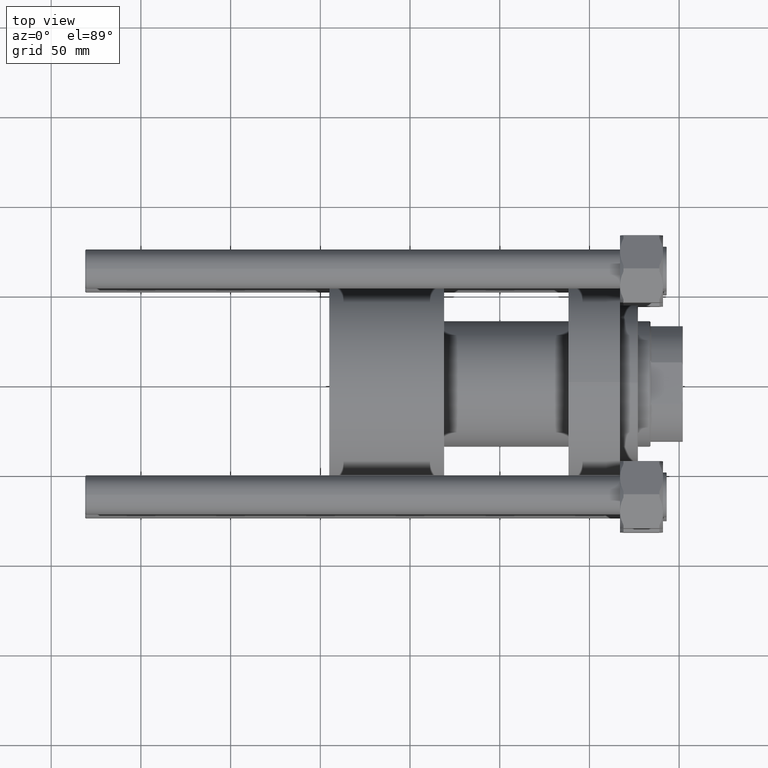
[diagram: clean part render]
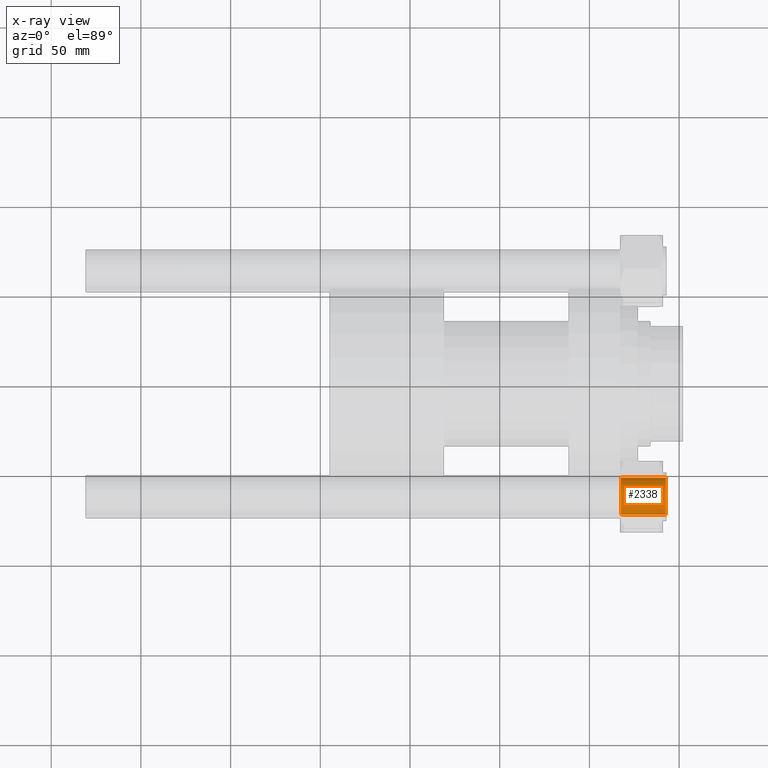
[diagram: x-ray — body ghosted, one internal face saturated and labeled with its STEP entity id]
A machine part, top view, then the same camera in x-ray: the body is ghosted and one INTERNAL B-rep face — a face not visible from any outside direction — is saturated and labeled: STEP entity #2338.
In plain terms, the highlighted cylindrical surface (edge-blend (fillet) strip) has radius 11 mm, axis along (1, 0, -0).
Its self-contained STEP definition (entity closure, byte-faithful):
#1276 = DIRECTION ( 'NONE',  ( -0.000000000000000000, -0.000000000000000000, -1.000000000000000000 ) ) ;
#1510 = DIRECTION ( 'NONE',  ( 0.000000000000000000, 0.000000000000000000, 1.000000000000000000 ) ) ;
#1661 = VERTEX_POINT ( 'NONE', #18629 ) ;
#2338 = ADVANCED_FACE ( 'NONE', ( #34519 ), #15192, .F. ) ;
#2548 = AXIS2_PLACEMENT_3D ( 'NONE', #9658, #1276, #21604 ) ;
#3285 = VERTEX_POINT ( 'NONE', #36913 ) ;
#3679 = ORIENTED_EDGE ( 'NONE', *, *, #46007, .T. ) ;
#4333 = EDGE_CURVE ( 'NONE', #25478, #3285, #23600, .T. ) ;
#5329 = DIRECTION ( 'NONE',  ( 1.000000000000000000, 0.000000000000000000, 0.000000000000000000 ) ) ;
#5943 = LINE ( 'NONE', #36970, #27533 ) ;
#6194 = EDGE_CURVE ( 'NONE', #1661, #49617, #24486, .T. ) ;
#6544 = DIRECTION ( 'NONE',  ( -0.000000000000000000, -0.000000000000000000, 1.000000000000000000 ) ) ;
#7525 = ORIENTED_EDGE ( 'NONE', *, *, #23707, .F. ) ;
#7566 = DIRECTION ( 'NONE',  ( 1.000000000000000000, 0.000000000000000000, 0.000000000000000000 ) ) ;
#8151 = CARTESIAN_POINT ( 'NONE',  ( 11.00000000000000000, 0.000000000000000000, -23.50000000000000711 ) ) ;
#9658 = CARTESIAN_POINT ( 'NONE',  ( 0.000000000000000000, 0.000000000000000000, -23.50000000000000711 ) ) ;
#15192 = CYLINDRICAL_SURFACE ( 'NONE', #47095, 11.00000000000000000 ) ;
#18629 = CARTESIAN_POINT ( 'NONE',  ( -11.00000000000000000, 1.347111479062088405E-15, -23.50000000000000711 ) ) ;
#20595 = ORIENTED_EDGE ( 'NONE', *, *, #4333, .T. ) ;
#20925 = EDGE_LOOP ( 'NONE', ( #7525, #24515, #3679, #20595 ) ) ;
#21604 = DIRECTION ( 'NONE',  ( -1.000000000000000000, 0.000000000000000000, 0.000000000000000000 ) ) ;
#21972 = DIRECTION ( 'NONE',  ( -0.000000000000000000, -0.000000000000000000, 1.000000000000000000 ) ) ;
#23600 = CIRCLE ( 'NONE', #30126, 11.00000000000000000 ) ;
#23707 = EDGE_CURVE ( 'NONE', #1661, #3285, #32272, .T. ) ;
#24403 = CARTESIAN_POINT ( 'NONE',  ( -11.00000000000000000, 1.347111479062088405E-15, -24.00000000000000000 ) ) ;
#24486 = CIRCLE ( 'NONE', #2548, 11.00000000000000000 ) ;
#24515 = ORIENTED_EDGE ( 'NONE', *, *, #6194, .T. ) ;
#25478 = VERTEX_POINT ( 'NONE', #32927 ) ;
#27533 = VECTOR ( 'NONE', #21972, 1000.000000000000000 ) ;
#30126 = AXIS2_PLACEMENT_3D ( 'NONE', #43234, #1510, #5329 ) ;
#30704 = CARTESIAN_POINT ( 'NONE',  ( 0.000000000000000000, 0.000000000000000000, -24.00000000000000000 ) ) ;
#32272 = LINE ( 'NONE', #24403, #42752 ) ;
#32927 = CARTESIAN_POINT ( 'NONE',  ( 11.00000000000000000, 0.000000000000000000, 1.500000000000001332 ) ) ;
#34519 = FACE_OUTER_BOUND ( 'NONE', #20925, .T. ) ;
#36913 = CARTESIAN_POINT ( 'NONE',  ( -11.00000000000000000, 1.347111479062088405E-15, 1.500000000000001332 ) ) ;
#36970 = CARTESIAN_POINT ( 'NONE',  ( 11.00000000000000000, 0.000000000000000000, -24.00000000000000000 ) ) ;
#42752 = VECTOR ( 'NONE', #47761, 1000.000000000000000 ) ;
#43234 = CARTESIAN_POINT ( 'NONE',  ( 0.000000000000000000, 0.000000000000000000, 1.500000000000001332 ) ) ;
#46007 = EDGE_CURVE ( 'NONE', #49617, #25478, #5943, .T. ) ;
#47095 = AXIS2_PLACEMENT_3D ( 'NONE', #30704, #6544, #7566 ) ;
#47761 = DIRECTION ( 'NONE',  ( -0.000000000000000000, -0.000000000000000000, 1.000000000000000000 ) ) ;
#49617 = VERTEX_POINT ( 'NONE', #8151 ) ;